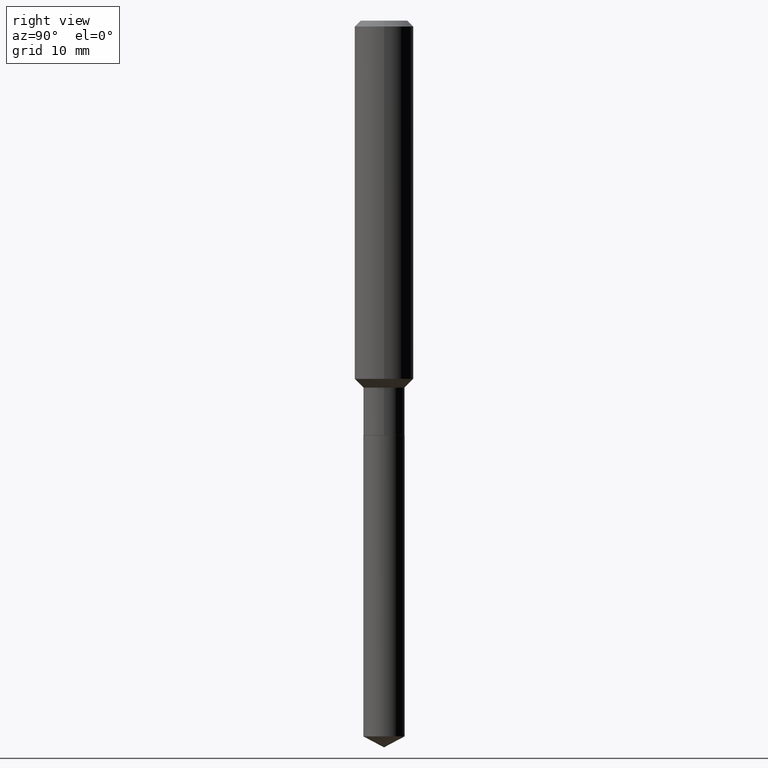
[diagram: clean part render]
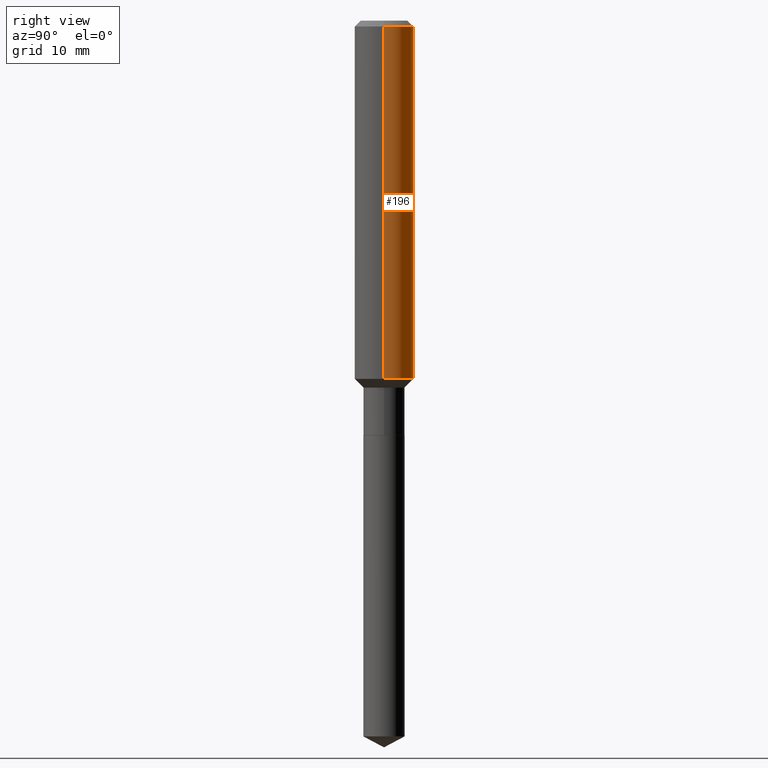
[diagram: same view with one face highlighted and labeled with its STEP entity id]
A machine part, right view. The second image highlights one B-rep face of the part: STEP entity #196.
In plain terms, the highlighted cylindrical surface (edge-blend (fillet) strip) has radius 2.9997 mm, axis along (-0, 0, 1).
Its self-contained STEP definition (entity closure, byte-faithful):
#4 = CARTESIAN_POINT ( 'NONE',  ( -0.1181000000000000799, 8.391509709326788873E-16, -5.809262341591047988E-30 ) ) ;
#7 = VECTOR ( 'NONE', #84, 39.37007874015748143 ) ;
#24 = AXIS2_PLACEMENT_3D ( 'NONE', #96, #401, #54 ) ;
#30 = CIRCLE ( 'NONE', #220, 0.1181000000000001632 ) ;
#38 = CARTESIAN_POINT ( 'NONE',  ( 0.1181000000000000799, -8.246878922347486570E-16, 5.758764772215004644E-30 ) ) ;
#41 = EDGE_LOOP ( 'NONE', ( #229, #361, #237, #271 ) ) ;
#49 = EDGE_CURVE ( 'NONE', #470, #370, #117, .T. ) ;
#54 = DIRECTION ( 'NONE',  ( 1.000000000000000000, -6.982962677686266711E-15, 0.000000000000000000 ) ) ;
#73 = CARTESIAN_POINT ( 'NONE',  ( 0.1180999999999999966, -9.071566814582237199E-16, -0.02362000000000014088 ) ) ;
#79 = VECTOR ( 'NONE', #155, 39.37007874015748143 ) ;
#84 = DIRECTION ( 'NONE',  ( -2.445468806185136877E-29, 3.491481338843145188E-15, 1.000000000000000000 ) ) ;
#96 = CARTESIAN_POINT ( 'NONE',  ( 5.776197320209327532E-31, -8.246878922347559293E-17, -0.02362000000000014088 ) ) ;
#97 = AXIS2_PLACEMENT_3D ( 'NONE', #212, #438, #173 ) ;
#117 = LINE ( 'NONE', #4, #7 ) ;
#155 = DIRECTION ( 'NONE',  ( -2.445468806185136877E-29, 3.491481338843145188E-15, 1.000000000000000000 ) ) ;
#163 = VERTEX_POINT ( 'NONE', #262 ) ;
#173 = DIRECTION ( 'NONE',  ( 1.000000000000000000, -6.982962677686266711E-15, 4.876176775795936353E-29 ) ) ;
#175 = CYLINDRICAL_SURFACE ( 'NONE', #97, 0.1181000000000000799 ) ;
#196 = ADVANCED_FACE ( 'NONE', ( #428 ), #175, .T. ) ;
#209 = DIRECTION ( 'NONE',  ( 1.000000000000000000, -6.982962677686270655E-15, 0.000000000000000000 ) ) ;
#212 = CARTESIAN_POINT ( 'NONE',  ( 0.000000000000000000, 0.000000000000000000, 0.000000000000000000 ) ) ;
#220 = AXIS2_PLACEMENT_3D ( 'NONE', #247, #402, #209 ) ;
#229 = ORIENTED_EDGE ( 'NONE', *, *, #297, .T. ) ;
#237 = ORIENTED_EDGE ( 'NONE', *, *, #260, .F. ) ;
#247 = CARTESIAN_POINT ( 'NONE',  ( 3.511448658801237790E-29, -5.013418054444873531E-15, -1.435900000000000176 ) ) ;
#260 = EDGE_CURVE ( 'NONE', #430, #370, #440, .T. ) ;
#262 = CARTESIAN_POINT ( 'NONE',  ( 0.1181000000000001632, -5.838105946679621793E-15, -1.435900000000000176 ) ) ;
#271 = ORIENTED_EDGE ( 'NONE', *, *, #487, .F. ) ;
#297 = EDGE_CURVE ( 'NONE', #163, #470, #30, .T. ) ;
#361 = ORIENTED_EDGE ( 'NONE', *, *, #49, .T. ) ;
#370 = VERTEX_POINT ( 'NONE', #408 ) ;
#378 = CARTESIAN_POINT ( 'NONE',  ( -0.1181000000000001632, -4.174267083512193756E-15, -1.435900000000000176 ) ) ;
#385 = LINE ( 'NONE', #38, #79 ) ;
#401 = DIRECTION ( 'NONE',  ( -2.445468806185136597E-29, 3.491481338843145583E-15, 1.000000000000000000 ) ) ;
#402 = DIRECTION ( 'NONE',  ( -2.445468806185136597E-29, 3.491481338843145583E-15, 1.000000000000000000 ) ) ;
#408 = CARTESIAN_POINT ( 'NONE',  ( -0.1180999999999999966, -1.708792450901494916E-15, -0.02362000000000014088 ) ) ;
#428 = FACE_OUTER_BOUND ( 'NONE', #41, .T. ) ;
#430 = VERTEX_POINT ( 'NONE', #73 ) ;
#438 = DIRECTION ( 'NONE',  ( -2.445468806185136597E-29, 3.491481338843145583E-15, 1.000000000000000000 ) ) ;
#440 = CIRCLE ( 'NONE', #24, 0.1180999999999999966 ) ;
#470 = VERTEX_POINT ( 'NONE', #378 ) ;
#487 = EDGE_CURVE ( 'NONE', #163, #430, #385, .T. ) ;